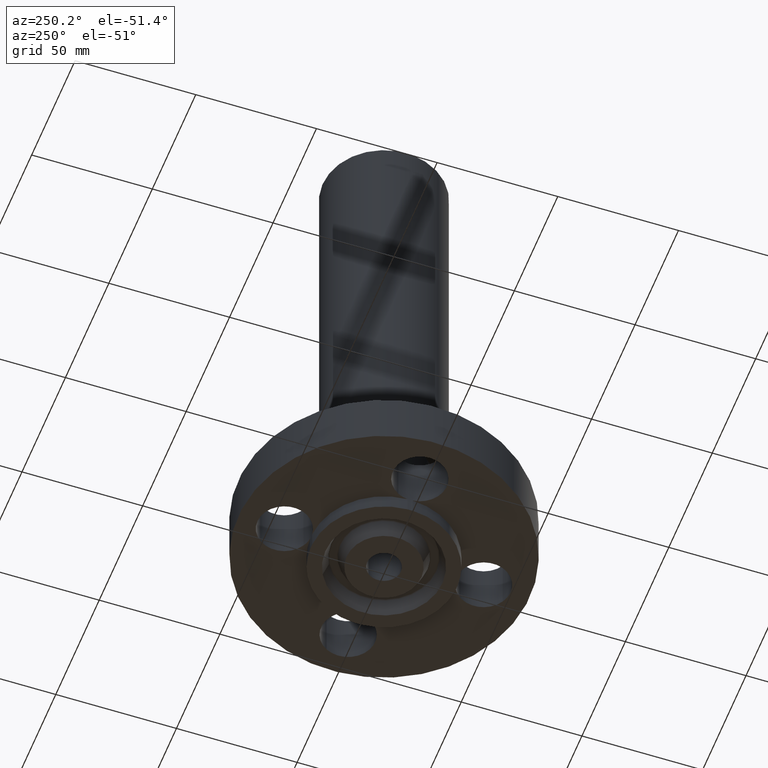
[diagram: clean part render]
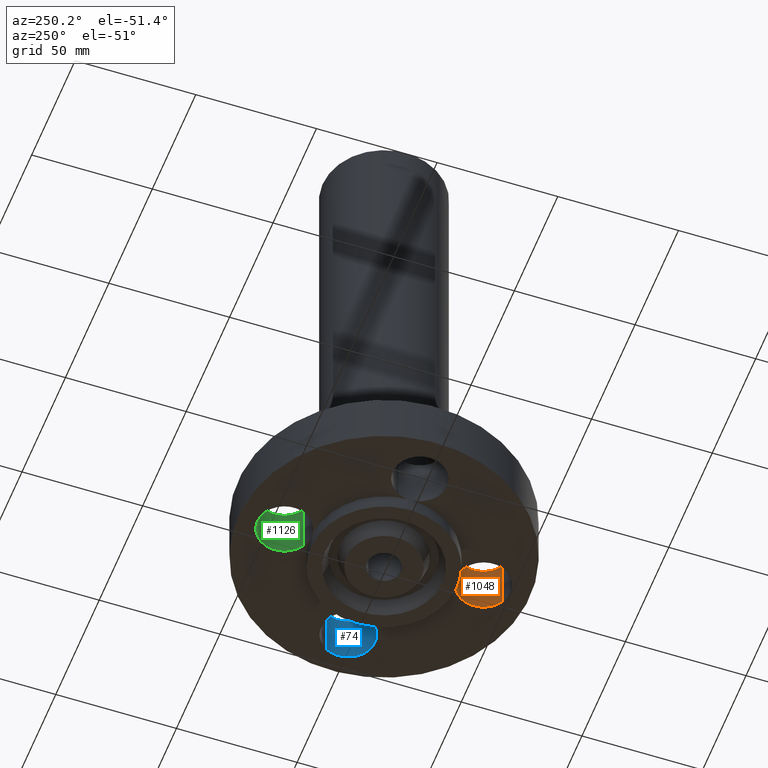
[diagram: same view with three faces highlighted in distinct colors, each labeled with its STEP entity id]
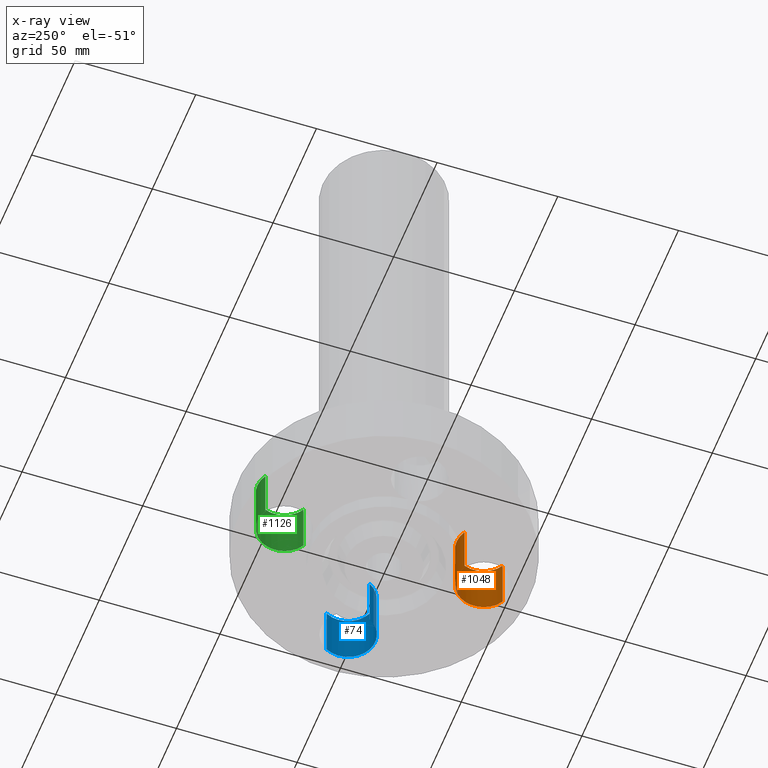
[diagram: x-ray of the same camera — body ghosted, the three highlighted faces saturated]
A machine part, auxiliary view with three faces highlighted in distinct colors.
The next image is the same camera in x-ray (body ghosted, the three faces saturated) — at least one of them is partly hidden behind the body in this view.
Their STEP definitions:

[orange] entity #1048 — the highlighted cylindrical surface (edge-blend (fillet) strip) has radius 11.176 mm, axis along (-0, 0, 1).
#116=AXIS2_PLACEMENT_3D('Circle Axis2P3D',#114,#115,$) ;
#130=AXIS2_PLACEMENT_3D('Circle Axis2P3D',#128,#129,$) ;
#377=AXIS2_PLACEMENT_3D('Circle Axis2P3D',#375,#376,$) ;
#1005=AXIS2_PLACEMENT_3D('Cylinder Axis2P3D',#1002,#1003,#1004) ;
#1035=AXIS2_PLACEMENT_3D('Circle Axis2P3D',#1033,#1034,$) ;
#111=CARTESIAN_POINT('Vertex',(-0.0400333532821,-1.186825,1.42056095671E-017)) ;
#114=CARTESIAN_POINT('Axis2P3D Location',(-3.84644197508E-016,-1.62500000001,0.)) ;
#118=CARTESIAN_POINT('Vertex',(-0.210947236987,-1.23886367277,0.)) ;
#125=CARTESIAN_POINT('Vertex',(0.210947236987,-2.01113632724,2.2401153548E-016)) ;
#128=CARTESIAN_POINT('Axis2P3D Location',(-3.84644197508E-016,-1.62500000001,0.)) ;
#132=CARTESIAN_POINT('Vertex',(0.0400333532821,-1.186825,1.42056095671E-017)) ;
#323=CARTESIAN_POINT('Vertex',(-0.0400333532821,-1.186825,-0.250000000001)) ;
#372=CARTESIAN_POINT('Vertex',(0.0400333532821,-1.186825,-0.250000000001)) ;
#375=CARTESIAN_POINT('Axis2P3D Location',(-1.22386790116E-016,-1.62500000001,-0.250000000001)) ;
#920=CARTESIAN_POINT('Line Origine',(0.0400333532821,-1.186825,-0.125000000001)) ;
#937=CARTESIAN_POINT('Line Origine',(-0.0400333532821,-1.186825,-0.125000000001)) ;
#1002=CARTESIAN_POINT('Axis2P3D Location',(-1.8023868212E-016,-1.62500000001,0.00393700787402)) ;
#1007=CARTESIAN_POINT('Line Origine',(-0.210947236987,-1.23886367277,0.315000000001)) ;
#1011=CARTESIAN_POINT('Vertex',(-0.210947236987,-1.23886367277,0.880000000004)) ;
#1018=CARTESIAN_POINT('Vertex',(0.210947236987,-2.01113632724,0.880000000004)) ;
#1021=CARTESIAN_POINT('Line Origine',(0.210947236987,-2.01113632724,0.315000000001)) ;
#1033=CARTESIAN_POINT('Axis2P3D Location',(-1.8023868212E-016,-1.62500000001,0.880000000004)) ;
#115=DIRECTION('Axis2P3D Direction',(0.,0.,-0.0393700787402)) ;
#129=DIRECTION('Axis2P3D Direction',(0.,0.,-0.0393700787402)) ;
#376=DIRECTION('Axis2P3D Direction',(0.,0.,-0.0393700787402)) ;
#921=DIRECTION('Vector Direction',(0.,0.,-0.0393700787402)) ;
#938=DIRECTION('Vector Direction',(0.,0.,-0.0393700787402)) ;
#1003=DIRECTION('Axis2P3D Direction',(-0.,0.,0.0393700787402)) ;
#1004=DIRECTION('Axis2P3D XDirection',(0.0188750212049,-0.0345504945626,0.)) ;
#1008=DIRECTION('Vector Direction',(0.,0.,0.0393700787402)) ;
#1022=DIRECTION('Vector Direction',(0.,0.,0.0393700787402)) ;
#1034=DIRECTION('Axis2P3D Direction',(-0.,0.,0.0393700787402)) ;
#922=VECTOR('Line Direction',#921,0.0393700787402) ;
#939=VECTOR('Line Direction',#938,0.0393700787402) ;
#1009=VECTOR('Line Direction',#1008,0.0393700787402) ;
#1023=VECTOR('Line Direction',#1022,0.0393700787402) ;
#1039=ORIENTED_EDGE('',*,*,#1025,.F.) ;
#1040=ORIENTED_EDGE('',*,*,#1037,.F.) ;
#1041=ORIENTED_EDGE('',*,*,#1013,.T.) ;
#1042=ORIENTED_EDGE('',*,*,#120,.T.) ;
#1043=ORIENTED_EDGE('',*,*,#941,.T.) ;
#1044=ORIENTED_EDGE('',*,*,#379,.T.) ;
#1045=ORIENTED_EDGE('',*,*,#924,.F.) ;
#1046=ORIENTED_EDGE('',*,*,#134,.T.) ;
#1048=ADVANCED_FACE('PartBody',(#1047),#1006,.F.) ;
#117=CIRCLE('generated circle',#116,0.440000000002) ;
#131=CIRCLE('generated circle',#130,0.440000000002) ;
#378=CIRCLE('generated circle',#377,0.440000000002) ;
#1036=CIRCLE('generated circle',#1035,0.440000000002) ;
#1006=CYLINDRICAL_SURFACE('generated cylinder',#1005,0.440000000002) ;
#120=EDGE_CURVE('',#119,#112,#117,.T.) ;
#134=EDGE_CURVE('',#133,#126,#131,.T.) ;
#379=EDGE_CURVE('',#324,#373,#378,.T.) ;
#924=EDGE_CURVE('',#133,#373,#923,.T.) ;
#941=EDGE_CURVE('',#112,#324,#940,.T.) ;
#1013=EDGE_CURVE('',#1012,#119,#1010,.F.) ;
#1025=EDGE_CURVE('',#1019,#126,#1024,.F.) ;
#1037=EDGE_CURVE('',#1012,#1019,#1036,.F.) ;
#1038=EDGE_LOOP('',(#1039,#1040,#1041,#1042,#1043,#1044,#1045,#1046)) ;
#1047=FACE_OUTER_BOUND('',#1038,.T.) ;
#923=LINE('Line',#920,#922) ;
#940=LINE('Line',#937,#939) ;
#1010=LINE('Line',#1007,#1009) ;
#1024=LINE('Line',#1021,#1023) ;
#112=VERTEX_POINT('',#111) ;
#119=VERTEX_POINT('',#118) ;
#126=VERTEX_POINT('',#125) ;
#133=VERTEX_POINT('',#132) ;
#324=VERTEX_POINT('',#323) ;
#373=VERTEX_POINT('',#372) ;
#1012=VERTEX_POINT('',#1011) ;
#1019=VERTEX_POINT('',#1018) ;

[blue] entity #74 — the highlighted cylindrical surface (edge-blend (fillet) strip) has radius 11.176 mm, axis along (0, -0, 1).
#38=AXIS2_PLACEMENT_3D('Cylinder Axis2P3D',#35,#36,#37) ;
#51=AXIS2_PLACEMENT_3D('Circle Axis2P3D',#49,#50,$) ;
#65=AXIS2_PLACEMENT_3D('Circle Axis2P3D',#63,#64,$) ;
#35=CARTESIAN_POINT('Axis2P3D Location',(1.62500000001,0.,0.00393700787402)) ;
#40=CARTESIAN_POINT('Line Origine',(1.23886367277,-0.210947236987,0.315000000001)) ;
#44=CARTESIAN_POINT('Vertex',(1.23886367277,-0.210947236987,0.880000000004)) ;
#46=CARTESIAN_POINT('Vertex',(1.23886367277,-0.210947236987,2.2401153548E-016)) ;
#49=CARTESIAN_POINT('Axis2P3D Location',(1.62500000001,0.,0.880000000004)) ;
#53=CARTESIAN_POINT('Vertex',(2.01113632724,0.210947236987,0.880000000004)) ;
#56=CARTESIAN_POINT('Line Origine',(2.01113632724,0.210947236987,0.315000000001)) ;
#60=CARTESIAN_POINT('Vertex',(2.01113632724,0.210947236987,2.2401153548E-016)) ;
#63=CARTESIAN_POINT('Axis2P3D Location',(1.62500000001,0.,0.)) ;
#36=DIRECTION('Axis2P3D Direction',(0.,-0.,0.0393700787402)) ;
#37=DIRECTION('Axis2P3D XDirection',(0.0345504945626,0.0188750212049,0.)) ;
#41=DIRECTION('Vector Direction',(0.,0.,0.0393700787402)) ;
#50=DIRECTION('Axis2P3D Direction',(0.,-0.,0.0393700787402)) ;
#57=DIRECTION('Vector Direction',(0.,0.,0.0393700787402)) ;
#64=DIRECTION('Axis2P3D Direction',(0.,-0.,0.0393700787402)) ;
#42=VECTOR('Line Direction',#41,0.0393700787402) ;
#58=VECTOR('Line Direction',#57,0.0393700787402) ;
#69=ORIENTED_EDGE('',*,*,#48,.F.) ;
#70=ORIENTED_EDGE('',*,*,#55,.F.) ;
#71=ORIENTED_EDGE('',*,*,#62,.T.) ;
#72=ORIENTED_EDGE('',*,*,#67,.T.) ;
#74=ADVANCED_FACE('PartBody',(#73),#39,.F.) ;
#52=CIRCLE('generated circle',#51,0.440000000002) ;
#66=CIRCLE('generated circle',#65,0.440000000002) ;
#39=CYLINDRICAL_SURFACE('generated cylinder',#38,0.440000000002) ;
#48=EDGE_CURVE('',#45,#47,#43,.F.) ;
#55=EDGE_CURVE('',#54,#45,#52,.F.) ;
#62=EDGE_CURVE('',#54,#61,#59,.F.) ;
#67=EDGE_CURVE('',#61,#47,#66,.F.) ;
#68=EDGE_LOOP('',(#69,#70,#71,#72)) ;
#73=FACE_OUTER_BOUND('',#68,.T.) ;
#43=LINE('Line',#40,#42) ;
#59=LINE('Line',#56,#58) ;
#45=VERTEX_POINT('',#44) ;
#47=VERTEX_POINT('',#46) ;
#54=VERTEX_POINT('',#53) ;
#61=VERTEX_POINT('',#60) ;

[green] entity #1126 — the highlighted cylindrical surface (edge-blend (fillet) strip) has radius 11.176 mm, axis along (0, 0, 1).
#177=AXIS2_PLACEMENT_3D('Circle Axis2P3D',#175,#176,$) ;
#1099=AXIS2_PLACEMENT_3D('Cylinder Axis2P3D',#1096,#1097,#1098) ;
#1110=AXIS2_PLACEMENT_3D('Circle Axis2P3D',#1108,#1109,$) ;
#172=CARTESIAN_POINT('Vertex',(0.210947236987,1.23886367277,0.)) ;
#175=CARTESIAN_POINT('Axis2P3D Location',(-4.54579506146E-016,1.62500000001,0.)) ;
#179=CARTESIAN_POINT('Vertex',(-0.210947236987,2.01113632724,2.2401153548E-016)) ;
#1096=CARTESIAN_POINT('Axis2P3D Location',(-2.98507657293E-016,1.62500000001,0.00393700787402)) ;
#1101=CARTESIAN_POINT('Line Origine',(0.210947236987,1.23886367277,0.315000000001)) ;
#1105=CARTESIAN_POINT('Vertex',(0.210947236987,1.23886367277,0.880000000004)) ;
#1108=CARTESIAN_POINT('Axis2P3D Location',(-2.98507657293E-016,1.62500000001,0.880000000004)) ;
#1112=CARTESIAN_POINT('Vertex',(-0.210947236987,2.01113632724,0.880000000004)) ;
#1115=CARTESIAN_POINT('Line Origine',(-0.210947236987,2.01113632724,0.315000000001)) ;
#176=DIRECTION('Axis2P3D Direction',(0.,0.,-0.0393700787402)) ;
#1097=DIRECTION('Axis2P3D Direction',(0.,0.,0.0393700787402)) ;
#1098=DIRECTION('Axis2P3D XDirection',(-0.0188750212049,0.0345504945626,0.)) ;
#1102=DIRECTION('Vector Direction',(0.,0.,0.0393700787402)) ;
#1109=DIRECTION('Axis2P3D Direction',(0.,0.,0.0393700787402)) ;
#1116=DIRECTION('Vector Direction',(0.,0.,0.0393700787402)) ;
#1103=VECTOR('Line Direction',#1102,0.0393700787402) ;
#1117=VECTOR('Line Direction',#1116,0.0393700787402) ;
#1121=ORIENTED_EDGE('',*,*,#1107,.F.) ;
#1122=ORIENTED_EDGE('',*,*,#1114,.F.) ;
#1123=ORIENTED_EDGE('',*,*,#1119,.T.) ;
#1124=ORIENTED_EDGE('',*,*,#181,.T.) ;
#1126=ADVANCED_FACE('PartBody',(#1125),#1100,.F.) ;
#178=CIRCLE('generated circle',#177,0.440000000002) ;
#1111=CIRCLE('generated circle',#1110,0.440000000002) ;
#1100=CYLINDRICAL_SURFACE('generated cylinder',#1099,0.440000000002) ;
#181=EDGE_CURVE('',#180,#173,#178,.T.) ;
#1107=EDGE_CURVE('',#1106,#173,#1104,.F.) ;
#1114=EDGE_CURVE('',#1113,#1106,#1111,.F.) ;
#1119=EDGE_CURVE('',#1113,#180,#1118,.F.) ;
#1120=EDGE_LOOP('',(#1121,#1122,#1123,#1124)) ;
#1125=FACE_OUTER_BOUND('',#1120,.T.) ;
#1104=LINE('Line',#1101,#1103) ;
#1118=LINE('Line',#1115,#1117) ;
#173=VERTEX_POINT('',#172) ;
#180=VERTEX_POINT('',#179) ;
#1106=VERTEX_POINT('',#1105) ;
#1113=VERTEX_POINT('',#1112) ;